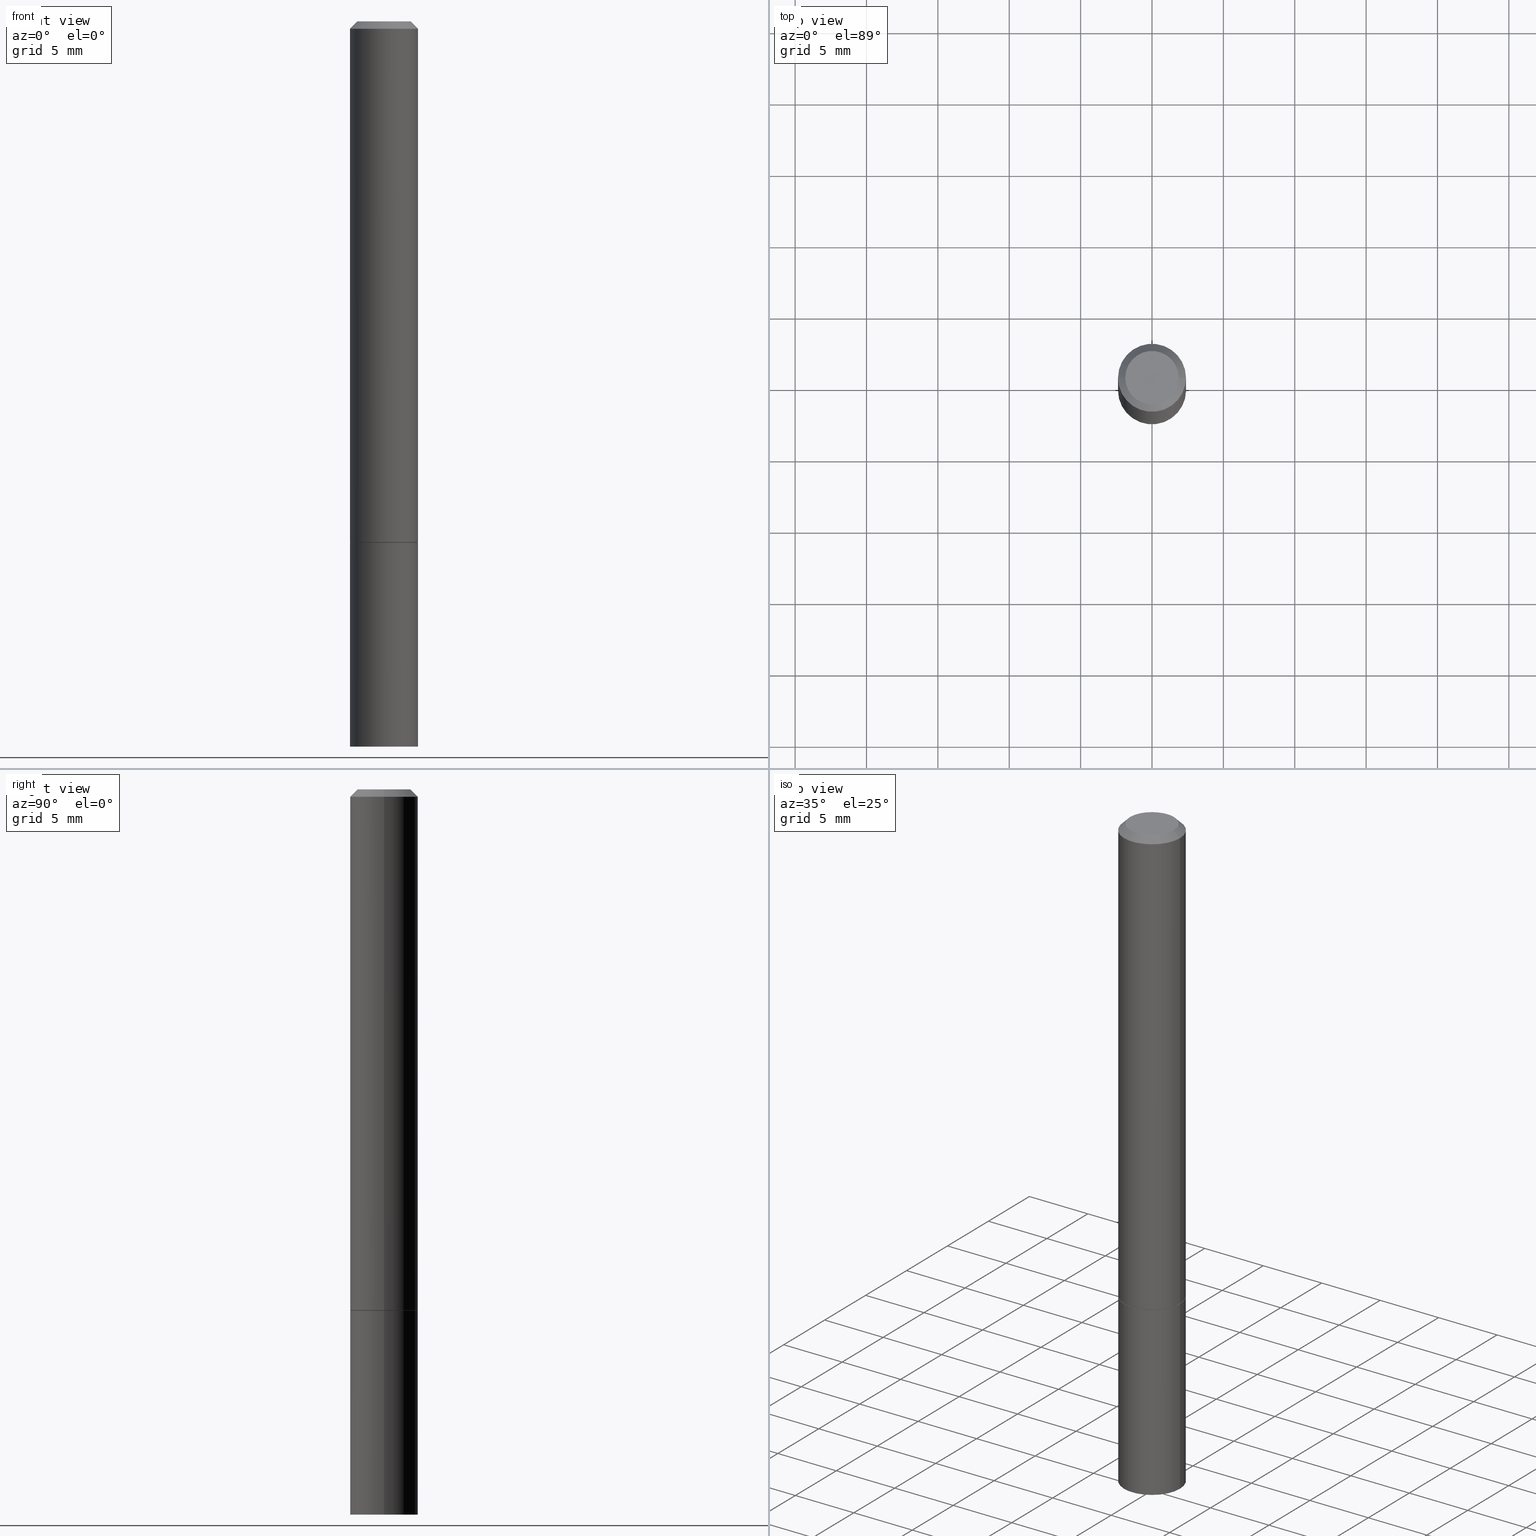
[diagram: canonical four-view strip — front | top / right | iso, engineering-drawing reading convention]
A machine part, canonical four-view strip (front | top / right | iso — engineering-drawing reading convention). The complete STEP part file that produces these views, byte-faithful:
ISO-10303-21;
HEADER;
FILE_DESCRIPTION (( 'STEP AP203' ),
    '1' );
FILE_NAME ('34729.STEP',
    '2024-02-27T17:12:00',
    ( '' ),
    ( '' ),
    'SwSTEP 2.0',
    'SolidWorks 2023',
    '' );
FILE_SCHEMA (( 'CONFIG_CONTROL_DESIGN' ));
ENDSEC;

DATA;
#1 = CARTESIAN_POINT ( 'NONE',  ( 3.515361408891133858E-29, -5.019004424587021553E-15, -1.437500000000000000 ) ) ;
#2 = PERSON_AND_ORGANIZATION ( #366, #289 ) ;
#3 = DIRECTION ( 'NONE',  ( -2.445468806185136597E-29, 3.491481338843145583E-15, 1.000000000000000000 ) ) ;
#4 = EDGE_CURVE ( 'NONE', #116, #150, #356, .T. ) ;
#5 = AXIS2_PLACEMENT_3D ( 'NONE', #243, #353, #136 ) ;
#6 = CARTESIAN_POINT ( 'NONE',  ( 3.512915940084948255E-29, -5.015512943248178546E-15, -1.436499999999999888 ) ) ;
#7 = ORIENTED_EDGE ( 'NONE', *, *, #242, .F. ) ;
#8 = MANIFOLD_SOLID_BREP ( 'Body-Move/Copy2[2]', #152 ) ;
#9 = MANIFOLD_SOLID_BREP ( 'Body-Move/Copy2[1]', #119 ) ;
#10 = VECTOR ( 'NONE', #336, 39.37007874015748143 ) ;
#11 = LOCAL_TIME ( 12, 12, 0.000000000000000000, #17 ) ;
#12 = CC_DESIGN_PERSON_AND_ORGANIZATION_ASSIGNMENT ( #183, #128, ( #314 ) ) ;
#13 = PERSON_AND_ORGANIZATION ( #366, #289 ) ;
#14 = PRODUCT ( '34729', '34729', '', ( #131 ) ) ;
#15 = CARTESIAN_POINT ( 'NONE',  ( 4.890937612370282792E-31, -6.982962677686303935E-17, -0.02000000000000003858 ) ) ;
#16 = ORIENTED_EDGE ( 'NONE', *, *, #141, .F. ) ;
#17 = COORDINATED_UNIVERSAL_TIME_OFFSET ( 5, 0, .BEHIND. ) ;
#18 = APPLICATION_PROTOCOL_DEFINITION ( 'international standard', 'config_control_design', 1994, #129 ) ;
#19 = DIRECTION ( 'NONE',  ( 1.000000000000000000, -6.982962677686261189E-15, 0.000000000000000000 ) ) ;
#20 = CALENDAR_DATE ( 2024, 27, 2 ) ;
#21 = EDGE_LOOP ( 'NONE', ( #293, #42 ) ) ;
#22 = FACE_OUTER_BOUND ( 'NONE', #259, .T. ) ;
#23 = AXIS2_PLACEMENT_3D ( 'NONE', #62, #186, #291 ) ;
#24 = LINE ( 'NONE', #55, #221 ) ;
#25 = CARTESIAN_POINT ( 'NONE',  ( 4.890937612370282792E-31, -6.982962677686303935E-17, -0.02000000000000003858 ) ) ;
#26 = ADVANCED_FACE ( 'NONE', ( #307 ), #113, .F. ) ;
#27 = CARTESIAN_POINT ( 'NONE',  ( -0.09274999999999999911, -4.359976037169529426E-15, -1.437500000000000000 ) ) ;
#28 = CYLINDRICAL_SURFACE ( 'NONE', #309, 0.09374999999999991673 ) ;
#29 = DIRECTION ( 'NONE',  ( 1.000000000000000000, -6.982962677686261189E-15, 0.000000000000000000 ) ) ;
#30 = CARTESIAN_POINT ( 'NONE',  ( -0.07374999999999984346, 5.499083108677921624E-16, 4.268512490096688071E-18 ) ) ;
#31 = CARTESIAN_POINT ( 'NONE',  ( -0.09374999999999983347, 5.848231242562233185E-16, -0.02000000000000003858 ) ) ;
#32 = VECTOR ( 'NONE', #285, 39.37007874015748143 ) ;
#33 =( NAMED_UNIT ( * ) SI_UNIT ( $, .STERADIAN. ) SOLID_ANGLE_UNIT ( ) );
#34 = CARTESIAN_POINT ( 'NONE',  ( 0.07374999999999984346, -6.094815207017961198E-16, 4.268512490104342487E-18 ) ) ;
#35 = AXIS2_PLACEMENT_3D ( 'NONE', #145, #328, #305 ) ;
#36 = EDGE_CURVE ( 'NONE', #150, #96, #110, .T. ) ;
#37 = EDGE_CURVE ( 'NONE', #65, #322, #170, .T. ) ;
#38 = EDGE_LOOP ( 'NONE', ( #73, #114 ) ) ;
#39 = CC_DESIGN_PERSON_AND_ORGANIZATION_ASSIGNMENT ( #236, #321, ( #85 ) ) ;
#40 = PERSON_AND_ORGANIZATION ( #366, #289 ) ;
#41 = AXIS2_PLACEMENT_3D ( 'NONE', #230, #91, #202 ) ;
#42 = ORIENTED_EDGE ( 'NONE', *, *, #151, .T. ) ;
#43 = ORIENTED_EDGE ( 'NONE', *, *, #36, .T. ) ;
#44 = DIRECTION ( 'NONE',  ( 1.000000000000000000, -6.982962677686266711E-15, 4.875869617646595616E-29 ) ) ;
#45 = CONICAL_SURFACE ( 'NONE', #251, 0.09274999999999999911, 0.7853981633974141952 ) ;
#46 = APPROVAL_PERSON_ORGANIZATION ( #2, #222, #217 ) ;
#47 = CARTESIAN_POINT ( 'NONE',  ( 5.149934974793610063E-16, 0.07374999999999984346, -2.553624924946312759E-16 ) ) ;
#48 = DIRECTION ( 'NONE',  ( -1.000000000000000000, 6.982962677686265922E-15, -4.876176775795935793E-29 ) ) ;
#49 = DIRECTION ( 'NONE',  ( -2.445468806185136597E-29, 3.491481338843145583E-15, 1.000000000000000000 ) ) ;
#50 = PLANE ( 'NONE',  #57 ) ;
#51 = AXIS2_PLACEMENT_3D ( 'NONE', #255, #92, #365 ) ;
#52 = DIRECTION ( 'NONE',  ( 2.438088387897960049E-29, -3.491481338843145188E-15, -1.000000000000000000 ) ) ;
#53 = DIRECTION ( 'NONE',  ( -2.445468806185136597E-29, 3.491481338843145583E-15, 1.000000000000000000 ) ) ;
#54 = EDGE_LOOP ( 'NONE', ( #335, #213 ) ) ;
#55 = CARTESIAN_POINT ( 'NONE',  ( -0.09374999999999991673, 6.661338147750933326E-16, -4.611501647113969791E-30 ) ) ;
#56 = CARTESIAN_POINT ( 'NONE',  ( 3.512915940084948255E-29, -5.015512943248178546E-15, -1.436499999999999888 ) ) ;
#57 = AXIS2_PLACEMENT_3D ( 'NONE', #47, #359, #245 ) ;
#58 = APPROVAL_PERSON_ORGANIZATION ( #97, #118, #76 ) ;
#59 = DATE_AND_TIME ( #278, #264 ) ;
#60 = DIRECTION ( 'NONE',  ( 1.000000000000000000, -6.982962677686266711E-15, 4.875869617646595616E-29 ) ) ;
#61 = CIRCLE ( 'NONE', #90, 0.09374999999999983347 ) ;
#62 = CARTESIAN_POINT ( 'NONE',  ( 0.000000000000000000, 0.000000000000000000, 0.000000000000000000 ) ) ;
#63 = ORIENTED_EDGE ( 'NONE', *, *, #37, .T. ) ;
#64 = APPROVAL_DATE_TIME ( #302, #347 ) ;
#65 = VERTEX_POINT ( 'NONE', #194 ) ;
#66 = FACE_OUTER_BOUND ( 'NONE', #360, .T. ) ;
#67 = ORIENTED_EDGE ( 'NONE', *, *, #279, .T. ) ;
#68 = SECURITY_CLASSIFICATION_LEVEL ( 'unclassified' ) ;
#69 = EDGE_LOOP ( 'NONE', ( #102, #215, #357, #304 ) ) ;
#70 = AXIS2_PLACEMENT_3D ( 'NONE', #15, #235, #340 ) ;
#71 = ADVANCED_FACE ( 'NONE', ( #165 ), #218, .T. ) ;
#72 = CARTESIAN_POINT ( 'NONE',  ( 3.515361408891133858E-29, -5.019004424587021553E-15, -1.437500000000000000 ) ) ;
#73 = ORIENTED_EDGE ( 'NONE', *, *, #4, .F. ) ;
#74 = CALENDAR_DATE ( 2024, 27, 2 ) ;
#75 = ORIENTED_EDGE ( 'NONE', *, *, #78, .F. ) ;
#76 = APPROVAL_ROLE ( '' ) ;
#77 = ORIENTED_EDGE ( 'NONE', *, *, #122, .T. ) ;
#78 = EDGE_CURVE ( 'NONE', #322, #346, #288, .T. ) ;
#79 = AXIS2_PLACEMENT_3D ( 'NONE', #224, #280, #82 ) ;
#80 = DIRECTION ( 'NONE',  ( -0.7071067811865232589, 7.493145998870265808E-15, 0.7071067811865715536 ) ) ;
#81 = EDGE_CURVE ( 'NONE', #260, #65, #111, .T. ) ;
#82 = DIRECTION ( 'NONE',  ( 1.000000000000000000, -6.982962677686265922E-15, 4.876176775795935793E-29 ) ) ;
#83 = CARTESIAN_POINT ( 'NONE',  ( 0.09374999999999991673, -6.546527510330869125E-16, 4.571415727308685602E-30 ) ) ;
#84 = DIRECTION ( 'NONE',  ( -2.445468806185136597E-29, 3.491481338843145583E-15, 1.000000000000000000 ) ) ;
#85 = PRODUCT_DEFINITION ( 'UNKNOWN', '', #314, #310 ) ;
#86 = AXIS2_PLACEMENT_3D ( 'NONE', #167, #52, #48 ) ;
#87 = DIRECTION ( 'NONE',  ( -2.445468806185136877E-29, 3.491481338843145188E-15, 1.000000000000000000 ) ) ;
#88 = DIRECTION ( 'NONE',  ( 1.000000000000000000, -6.982962677686261977E-15, 0.000000000000000000 ) ) ;
#89 = ADVANCED_FACE ( 'NONE', ( #22 ), #197, .T. ) ;
#90 = AXIS2_PLACEMENT_3D ( 'NONE', #172, #53, #257 ) ;
#91 = DIRECTION ( 'NONE',  ( -2.445468806185136597E-29, 3.491481338843145583E-15, 1.000000000000000000 ) ) ;
#92 = DIRECTION ( 'NONE',  ( -2.445468806185136597E-29, 3.491481338843145583E-15, 1.000000000000000000 ) ) ;
#93 = EDGE_CURVE ( 'NONE', #95, #270, #276, .T. ) ;
#94 = APPROVAL_PERSON_ORGANIZATION ( #13, #347, #348 ) ;
#95 = VERTEX_POINT ( 'NONE', #140 ) ;
#96 = VERTEX_POINT ( 'NONE', #247 ) ;
#97 = PERSON_AND_ORGANIZATION ( #366, #289 ) ;
#98 = FACE_OUTER_BOUND ( 'NONE', #38, .T. ) ;
#99 = APPROVAL_DATE_TIME ( #190, #118 ) ;
#100 = AXIS2_PLACEMENT_3D ( 'NONE', #121, #3, #60 ) ;
#101 = CYLINDRICAL_SURFACE ( 'NONE', #23, 0.09374999999999991673 ) ;
#102 = ORIENTED_EDGE ( 'NONE', *, *, #185, .T. ) ;
#103 = ADVANCED_FACE ( 'NONE', ( #163 ), #50, .F. ) ;
#104 = EDGE_CURVE ( 'NONE', #150, #116, #273, .T. ) ;
#105 = CALENDAR_DATE ( 2024, 27, 2 ) ;
#106 = ORIENTED_EDGE ( 'NONE', *, *, #157, .T. ) ;
#107 = DIRECTION ( 'NONE',  ( 1.000000000000000000, -6.982962677686261977E-15, 0.000000000000000000 ) ) ;
#108 = ADVANCED_FACE ( 'NONE', ( #250 ), #171, .T. ) ;
#109 = APPROVAL_STATUS ( 'not_yet_approved' ) ;
#110 = LINE ( 'NONE', #27, #292 ) ;
#111 = CIRCLE ( 'NONE', #132, 0.09375000000000001388 ) ;
#112 = LINE ( 'NONE', #31, #10 ) ;
#113 = PLANE ( 'NONE',  #86 ) ;
#114 = ORIENTED_EDGE ( 'NONE', *, *, #104, .F. ) ;
#115 = CARTESIAN_POINT ( 'NONE',  ( -0.09375000000000001388, -5.334849736361562435E-15, -1.437500000000000000 ) ) ;
#116 = VERTEX_POINT ( 'NONE', #216 ) ;
#117 = ORIENTED_EDGE ( 'NONE', *, *, #81, .T. ) ;
#118 = APPROVAL ( #272, 'UNSPECIFIED' ) ;
#119 = CLOSED_SHELL ( 'NONE', ( #311, #89, #26, #71 ) ) ;
#120 = LENGTH_MEASURE_WITH_UNIT ( LENGTH_MEASURE( 0.02539999999999999897 ), #169 );
#121 = CARTESIAN_POINT ( 'NONE',  ( -1.043851414335219820E-46, 1.490343170380447200E-32, 4.268512490100411279E-18 ) ) ;
#122 = EDGE_CURVE ( 'NONE', #260, #346, #223, .T. ) ;
#123 = DIRECTION ( 'NONE',  ( -2.445468806185136597E-29, 3.491481338843145583E-15, 1.000000000000000000 ) ) ;
#124 = DIRECTION ( 'NONE',  ( 1.000000000000000000, -6.982962677686261189E-15, 0.000000000000000000 ) ) ;
#125 = EDGE_CURVE ( 'NONE', #320, #130, #112, .T. ) ;
#126 = ORIENTED_EDGE ( 'NONE', *, *, #125, .F. ) ;
#127 = CIRCLE ( 'NONE', #196, 0.09375000000000001388 ) ;
#128 = PERSON_AND_ORGANIZATION_ROLE ( 'creator' ) ;
#129 = APPLICATION_CONTEXT ( 'configuration controlled 3d designs of mechanical parts and assemblies' ) ;
#130 = VERTEX_POINT ( 'NONE', #284 ) ;
#131 = MECHANICAL_CONTEXT ( 'NONE', #179, 'mechanical' ) ;
#132 = AXIS2_PLACEMENT_3D ( 'NONE', #332, #329, #19 ) ;
#133 = SECURITY_CLASSIFICATION ( '', '', #68 ) ;
#134 = CALENDAR_DATE ( 2024, 27, 2 ) ;
#135 = COORDINATED_UNIVERSAL_TIME_OFFSET ( 5, 0, .BEHIND. ) ;
#136 = DIRECTION ( 'NONE',  ( -1.000000000000000000, 6.982962677686265922E-15, -4.876176775795935793E-29 ) ) ;
#137 = CYLINDRICAL_SURFACE ( 'NONE', #35, 0.09375000000000001388 ) ;
#138 = DIRECTION ( 'NONE',  ( 1.000000000000000000, -6.982962677686261977E-15, 0.000000000000000000 ) ) ;
#139 = LOCAL_TIME ( 12, 12, 0.000000000000000000, #326 ) ;
#140 = CARTESIAN_POINT ( 'NONE',  ( 0.09375000000000001388, -5.670165694281265261E-15, -1.436499999999999888 ) ) ;
#141 = EDGE_CURVE ( 'NONE', #271, #270, #203, .T. ) ;
#142 = DIRECTION ( 'NONE',  ( 2.445468806185136597E-29, -3.491481338843145583E-15, -1.000000000000000000 ) ) ;
#143 = CC_DESIGN_SECURITY_CLASSIFICATION ( #133, ( #314 ) ) ;
#144 = CARTESIAN_POINT ( 'NONE',  ( 3.515361408891133858E-29, -5.019004424587021553E-15, -1.437500000000000000 ) ) ;
#145 = CARTESIAN_POINT ( 'NONE',  ( 0.000000000000000000, 0.000000000000000000, 0.000000000000000000 ) ) ;
#146 = FACE_OUTER_BOUND ( 'NONE', #330, .T. ) ;
#147 = DIRECTION ( 'NONE',  ( 1.000000000000000000, -6.982962677686261189E-15, 0.000000000000000000 ) ) ;
#148 = LOCAL_TIME ( 12, 12, 0.000000000000000000, #241 ) ;
#149 = DIMENSIONAL_EXPONENTS ( 1.000000000000000000, 0.000000000000000000, 0.000000000000000000, 0.000000000000000000, 0.000000000000000000, 0.000000000000000000, 0.000000000000000000 ) ;
#150 = VERTEX_POINT ( 'NONE', #177 ) ;
#151 = EDGE_CURVE ( 'NONE', #346, #322, #211, .T. ) ;
#152 = CLOSED_SHELL ( 'NONE', ( #275, #343, #204, #108, #201, #237, #231, #103 ) ) ;
#153 = DIRECTION ( 'NONE',  ( 0.000000000000000000, 0.000000000000000000, 1.000000000000000000 ) ) ;
#154 = ORIENTED_EDGE ( 'NONE', *, *, #37, .F. ) ;
#155 = FACE_OUTER_BOUND ( 'NONE', #269, .T. ) ;
#156 = ORIENTED_EDGE ( 'NONE', *, *, #323, .T. ) ;
#157 = EDGE_CURVE ( 'NONE', #130, #270, #61, .T. ) ;
#158 = AXIS2_PLACEMENT_3D ( 'NONE', #72, #189, #297 ) ;
#159 =( GEOMETRIC_REPRESENTATION_CONTEXT ( 3 ) GLOBAL_UNCERTAINTY_ASSIGNED_CONTEXT ( ( #266 ) ) GLOBAL_UNIT_ASSIGNED_CONTEXT ( ( #362, #176, #33 ) ) REPRESENTATION_CONTEXT ( 'NONE', 'WORKASPACE' ) );
#160 = DIRECTION ( 'NONE',  ( -2.445468806185136877E-29, 3.491481338843145188E-15, 1.000000000000000000 ) ) ;
#161 = DIRECTION ( 'NONE',  ( 1.000000000000000000, -6.982962677686261189E-15, 0.000000000000000000 ) ) ;
#162 = AXIS2_PLACEMENT_3D ( 'NONE', #198, #282, #29 ) ;
#163 = FACE_OUTER_BOUND ( 'NONE', #54, .T. ) ;
#164 = COORDINATED_UNIVERSAL_TIME_OFFSET ( 5, 0, .BEHIND. ) ;
#165 = FACE_OUTER_BOUND ( 'NONE', #286, .T. ) ;
#166 = EDGE_CURVE ( 'NONE', #271, #320, #261, .T. ) ;
#167 = CARTESIAN_POINT ( 'NONE',  ( 6.546527510331227070E-16, 0.09374999999999499012, -1.437500000000000222 ) ) ;
#168 = EDGE_CURVE ( 'NONE', #96, #95, #188, .T. ) ;
#169 =( LENGTH_UNIT ( ) NAMED_UNIT ( * ) SI_UNIT ( $, .METRE. ) );
#170 = LINE ( 'NONE', #220, #240 ) ;
#171 = CONICAL_SURFACE ( 'NONE', #319, 0.09374999999999983347, 0.7853981633974471688 ) ;
#172 = CARTESIAN_POINT ( 'NONE',  ( 4.890937612370282792E-31, -6.982962677686303935E-17, -0.02000000000000003858 ) ) ;
#173 = DATE_TIME_ROLE ( 'classification_date' ) ;
#174 = DIRECTION ( 'NONE',  ( -2.445468806185136597E-29, 3.491481338843145583E-15, 1.000000000000000000 ) ) ;
#175 = CC_DESIGN_PERSON_AND_ORGANIZATION_ASSIGNMENT ( #40, #342, ( #14 ) ) ;
#176 =( NAMED_UNIT ( * ) PLANE_ANGLE_UNIT ( ) SI_UNIT ( $, .RADIAN. ) );
#177 = CARTESIAN_POINT ( 'NONE',  ( -0.09274999999999999911, -4.354677582821307024E-15, -1.437500000000000000 ) ) ;
#178 = AXIS2_PLACEMENT_3D ( 'NONE', #252, #49, #161 ) ;
#179 = APPLICATION_CONTEXT ( 'configuration controlled 3d designs of mechanical parts and assemblies' ) ;
#180 = EDGE_LOOP ( 'NONE', ( #156, #77, #75, #154 ) ) ;
#181 = EDGE_CURVE ( 'NONE', #270, #130, #283, .T. ) ;
#182 = DIRECTION ( 'NONE',  ( 0.7071067811865232589, -2.468850131082003836E-15, 0.7071067811865715536 ) ) ;
#183 = PERSON_AND_ORGANIZATION ( #366, #289 ) ;
#184 = ORIENTED_EDGE ( 'NONE', *, *, #141, .T. ) ;
#185 = EDGE_CURVE ( 'NONE', #95, #96, #127, .T. ) ;
#186 = DIRECTION ( 'NONE',  ( -2.445468806185136597E-29, 3.491481338843145583E-15, 1.000000000000000000 ) ) ;
#187 = PERSON_AND_ORGANIZATION ( #366, #289 ) ;
#188 = CIRCLE ( 'NONE', #312, 0.09375000000000001388 ) ;
#189 = DIRECTION ( 'NONE',  ( -2.438088387897960049E-29, 3.491481338843145188E-15, 1.000000000000000000 ) ) ;
#190 = DATE_AND_TIME ( #20, #11 ) ;
#191 = ORIENTED_EDGE ( 'NONE', *, *, #185, .F. ) ;
#192 = EDGE_LOOP ( 'NONE', ( #317, #184, #267, #126 ) ) ;
#193 = AXIS2_PLACEMENT_3D ( 'NONE', #214, #153, #268 ) ;
#194 = CARTESIAN_POINT ( 'NONE',  ( 0.09375000000000001388, -7.637615428719378669E-15, -2.000000000000000000 ) ) ;
#195 = CARTESIAN_POINT ( 'NONE',  ( -0.09375000000000001388, -5.334849736361562435E-15, -2.000000000000000000 ) ) ;
#196 = AXIS2_PLACEMENT_3D ( 'NONE', #6, #174, #147 ) ;
#197 = PLANE ( 'NONE',  #5 ) ;
#198 = CARTESIAN_POINT ( 'NONE',  ( 3.515361408891133858E-29, -5.019004424587021553E-15, -1.437500000000000000 ) ) ;
#199 = FACE_OUTER_BOUND ( 'NONE', #69, .T. ) ;
#200 = AXIS2_PLACEMENT_3D ( 'NONE', #355, #363, #107 ) ;
#201 = ADVANCED_FACE ( 'NONE', ( #66 ), #101, .T. ) ;
#202 = DIRECTION ( 'NONE',  ( 1.000000000000000000, -6.982962677686267499E-15, 0.000000000000000000 ) ) ;
#203 = LINE ( 'NONE', #338, #32 ) ;
#204 = ADVANCED_FACE ( 'NONE', ( #265 ), #331, .T. ) ;
#205 = LOCAL_TIME ( 12, 12, 0.000000000000000000, #135 ) ;
#206 = ORIENTED_EDGE ( 'NONE', *, *, #93, .T. ) ;
#207 = DATE_AND_TIME ( #74, #205 ) ;
#208 = ORIENTED_EDGE ( 'NONE', *, *, #81, .F. ) ;
#209 = APPLICATION_PROTOCOL_DEFINITION ( 'international standard', 'config_control_design', 1994, #179 ) ;
#210 = PLANE ( 'NONE',  #158 ) ;
#211 = CIRCLE ( 'NONE', #51, 0.09375000000000001388 ) ;
#212 = PRODUCT_RELATED_PRODUCT_CATEGORY ( 'detail', '', ( #14 ) ) ;
#213 = ORIENTED_EDGE ( 'NONE', *, *, #166, .T. ) ;
#214 = CARTESIAN_POINT ( 'NONE',  ( 0.000000000000000000, 0.000000000000000000, 0.000000000000000000 ) ) ;
#215 = ORIENTED_EDGE ( 'NONE', *, *, #306, .T. ) ;
#216 = CARTESIAN_POINT ( 'NONE',  ( 0.09274999999999999911, -5.666674212942423043E-15, -1.437500000000000000 ) ) ;
#217 = APPROVAL_ROLE ( '' ) ;
#218 = CYLINDRICAL_SURFACE ( 'NONE', #79, 0.09375000000000001388 ) ;
#219 = DIRECTION ( 'NONE',  ( -2.445468806185136877E-29, 3.491481338843145188E-15, 1.000000000000000000 ) ) ;
#220 = CARTESIAN_POINT ( 'NONE',  ( 0.09375000000000001388, -6.546527510330875041E-16, 4.571415727308690506E-30 ) ) ;
#221 = VECTOR ( 'NONE', #226, 39.37007874015748143 ) ;
#222 = APPROVAL ( #109, 'UNSPECIFIED' ) ;
#223 = LINE ( 'NONE', #324, #308 ) ;
#224 = CARTESIAN_POINT ( 'NONE',  ( 0.000000000000000000, 0.000000000000000000, 0.000000000000000000 ) ) ;
#225 = ADVANCED_BREP_SHAPE_REPRESENTATION ( '34729', ( #9, #8, #193 ), #159 ) ;
#226 = DIRECTION ( 'NONE',  ( -2.445468806185136877E-29, 3.491481338843145188E-15, 1.000000000000000000 ) ) ;
#227 = CARTESIAN_POINT ( 'NONE',  ( 0.09374999999999983347, -7.130013140679430017E-16, -0.02000000000000003858 ) ) ;
#228 = DIRECTION ( 'NONE',  ( -2.445468806185136597E-29, 3.491481338843145583E-15, 1.000000000000000000 ) ) ;
#229 = CIRCLE ( 'NONE', #277, 0.07374999999999984346 ) ;
#230 = CARTESIAN_POINT ( 'NONE',  ( 4.890937612370282792E-31, -6.982962677686303935E-17, -0.02000000000000003858 ) ) ;
#231 = ADVANCED_FACE ( 'NONE', ( #98 ), #210, .F. ) ;
#232 = ORIENTED_EDGE ( 'NONE', *, *, #4, .T. ) ;
#233 = PERSON_AND_ORGANIZATION_ROLE ( 'design_supplier' ) ;
#234 = ORIENTED_EDGE ( 'NONE', *, *, #36, .F. ) ;
#235 = DIRECTION ( 'NONE',  ( 2.445468806185136597E-29, -3.491481338843145583E-15, -1.000000000000000000 ) ) ;
#236 = PERSON_AND_ORGANIZATION ( #366, #289 ) ;
#237 = ADVANCED_FACE ( 'NONE', ( #155 ), #364, .T. ) ;
#238 = SHAPE_DEFINITION_REPRESENTATION ( #258, #225 ) ;
#239 = ORIENTED_EDGE ( 'NONE', *, *, #279, .F. ) ;
#240 = VECTOR ( 'NONE', #160, 39.37007874015748143 ) ;
#241 = COORDINATED_UNIVERSAL_TIME_OFFSET ( 5, 0, .BEHIND. ) ;
#242 = EDGE_CURVE ( 'NONE', #320, #271, #229, .T. ) ;
#243 = CARTESIAN_POINT ( 'NONE',  ( 6.546527510331364135E-16, 0.09374999999999301947, -2.000000000000000444 ) ) ;
#244 = CARTESIAN_POINT ( 'NONE',  ( 3.515361408891133858E-29, -5.019004424587021553E-15, -1.437500000000000000 ) ) ;
#245 = DIRECTION ( 'NONE',  ( -1.000000000000000000, 6.982962677686265922E-15, -4.876176775795935793E-29 ) ) ;
#246 = CC_DESIGN_DATE_AND_TIME_ASSIGNMENT ( #59, #173, ( #133 ) ) ;
#247 = CARTESIAN_POINT ( 'NONE',  ( -0.09375000000000001388, -1.876537470237424631E-15, -1.436499999999999888 ) ) ;
#248 = DIRECTION ( 'NONE',  ( -1.000000000000000000, 6.982962677686267499E-15, 0.000000000000000000 ) ) ;
#249 = DIRECTION ( 'NONE',  ( -2.445468806185136597E-29, 3.491481338843145583E-15, 1.000000000000000000 ) ) ;
#250 = FACE_OUTER_BOUND ( 'NONE', #263, .T. ) ;
#251 = AXIS2_PLACEMENT_3D ( 'NONE', #1, #123, #296 ) ;
#252 = CARTESIAN_POINT ( 'NONE',  ( 4.890937612370273194E-29, -6.982962677686291165E-15, -2.000000000000000000 ) ) ;
#253 = AXIS2_PLACEMENT_3D ( 'NONE', #244, #354, #138 ) ;
#254 = CC_DESIGN_APPROVAL ( #222, ( #133 ) ) ;
#255 = CARTESIAN_POINT ( 'NONE',  ( 3.515361408891133858E-29, -5.019004424587021553E-15, -1.437500000000000000 ) ) ;
#256 = CARTESIAN_POINT ( 'NONE',  ( 0.000000000000000000, 0.000000000000000000, 0.000000000000000000 ) ) ;
#257 = DIRECTION ( 'NONE',  ( 1.000000000000000000, -6.982962677686267499E-15, 0.000000000000000000 ) ) ;
#258 = PRODUCT_DEFINITION_SHAPE ( 'NONE', 'NONE',  #85 ) ;
#259 = EDGE_LOOP ( 'NONE', ( #339, #208 ) ) ;
#260 = VERTEX_POINT ( 'NONE', #195 ) ;
#261 = CIRCLE ( 'NONE', #100, 0.07374999999999984346 ) ;
#262 = ORIENTED_EDGE ( 'NONE', *, *, #306, .F. ) ;
#263 = EDGE_LOOP ( 'NONE', ( #16, #7, #345, #106 ) ) ;
#264 = LOCAL_TIME ( 12, 12, 0.000000000000000000, #164 ) ;
#265 = FACE_OUTER_BOUND ( 'NONE', #192, .T. ) ;
#266 = UNCERTAINTY_MEASURE_WITH_UNIT (LENGTH_MEASURE( 1.000000000000000082E-05 ), #362, 'distance_accuracy_value', 'NONE');
#267 = ORIENTED_EDGE ( 'NONE', *, *, #181, .T. ) ;
#268 = DIRECTION ( 'NONE',  ( 1.000000000000000000, 0.000000000000000000, 0.000000000000000000 ) ) ;
#269 = EDGE_LOOP ( 'NONE', ( #234, #350, #67, #300 ) ) ;
#270 = VERTEX_POINT ( 'NONE', #227 ) ;
#271 = VERTEX_POINT ( 'NONE', #34 ) ;
#272 = APPROVAL_STATUS ( 'not_yet_approved' ) ;
#273 = CIRCLE ( 'NONE', #200, 0.09274999999999999911 ) ;
#274 = DATE_TIME_ROLE ( 'creation_date' ) ;
#275 = ADVANCED_FACE ( 'NONE', ( #146 ), #45, .T. ) ;
#276 = LINE ( 'NONE', #83, #313 ) ;
#277 = AXIS2_PLACEMENT_3D ( 'NONE', #281, #351, #44 ) ;
#278 = CALENDAR_DATE ( 2024, 27, 2 ) ;
#279 = EDGE_CURVE ( 'NONE', #116, #95, #349, .T. ) ;
#280 = DIRECTION ( 'NONE',  ( -2.445468806185136597E-29, 3.491481338843145583E-15, 1.000000000000000000 ) ) ;
#281 = CARTESIAN_POINT ( 'NONE',  ( -1.043851414335219820E-46, 1.490343170380447200E-32, 4.268512490100411279E-18 ) ) ;
#282 = DIRECTION ( 'NONE',  ( -2.445468806185136597E-29, 3.491481338843145583E-15, 1.000000000000000000 ) ) ;
#283 = CIRCLE ( 'NONE', #41, 0.09374999999999983347 ) ;
#284 = CARTESIAN_POINT ( 'NONE',  ( -0.09374999999999983347, 5.848231242562233185E-16, -0.02000000000000003858 ) ) ;
#285 = DIRECTION ( 'NONE',  ( 0.7071067811865466846, -7.319954787623252890E-15, -0.7071067811865483499 ) ) ;
#286 = EDGE_LOOP ( 'NONE', ( #341, #117, #63, #315 ) ) ;
#287 = CARTESIAN_POINT ( 'NONE',  ( 0.09274999999999999911, -5.666674212942423043E-15, -1.437500000000000000 ) ) ;
#288 = CIRCLE ( 'NONE', #162, 0.09375000000000001388 ) ;
#289 = ORGANIZATION ( 'UNSPECIFIED', 'UNSPECIFIED', '' ) ;
#290 = CC_DESIGN_PERSON_AND_ORGANIZATION_ASSIGNMENT ( #187, #295, ( #133 ) ) ;
#291 = DIRECTION ( 'NONE',  ( 1.000000000000000000, -6.982962677686266711E-15, 4.876176775795935793E-29 ) ) ;
#292 = VECTOR ( 'NONE', #80, 39.37007874015748854 ) ;
#293 = ORIENTED_EDGE ( 'NONE', *, *, #78, .T. ) ;
#294 = CC_DESIGN_APPROVAL ( #118, ( #85 ) ) ;
#295 = PERSON_AND_ORGANIZATION_ROLE ( 'classification_officer' ) ;
#296 = DIRECTION ( 'NONE',  ( 1.000000000000000000, -6.982962677686261977E-15, 0.000000000000000000 ) ) ;
#297 = DIRECTION ( 'NONE',  ( 1.000000000000000000, -6.982962677686265922E-15, 4.876176775795935793E-29 ) ) ;
#298 = DATE_AND_TIME ( #134, #139 ) ;
#299 = ORIENTED_EDGE ( 'NONE', *, *, #168, .T. ) ;
#300 = ORIENTED_EDGE ( 'NONE', *, *, #168, .F. ) ;
#301 = VECTOR ( 'NONE', #182, 39.37007874015748854 ) ;
#302 = DATE_AND_TIME ( #105, #148 ) ;
#303 = CC_DESIGN_APPROVAL ( #347, ( #314 ) ) ;
#304 = ORIENTED_EDGE ( 'NONE', *, *, #93, .F. ) ;
#305 = DIRECTION ( 'NONE',  ( 1.000000000000000000, -6.982962677686265922E-15, 4.876176775795935793E-29 ) ) ;
#306 = EDGE_CURVE ( 'NONE', #96, #130, #24, .T. ) ;
#307 = FACE_OUTER_BOUND ( 'NONE', #21, .T. ) ;
#308 = VECTOR ( 'NONE', #87, 39.37007874015748143 ) ;
#309 = AXIS2_PLACEMENT_3D ( 'NONE', #256, #249, #361 ) ;
#310 = DESIGN_CONTEXT ( 'detailed design', #129, 'design' ) ;
#311 = ADVANCED_FACE ( 'NONE', ( #334 ), #137, .T. ) ;
#312 = AXIS2_PLACEMENT_3D ( 'NONE', #56, #228, #124 ) ;
#313 = VECTOR ( 'NONE', #219, 39.37007874015748143 ) ;
#314 = PRODUCT_DEFINITION_FORMATION_WITH_SPECIFIED_SOURCE ( 'ANY', '', #14, .NOT_KNOWN. ) ;
#315 = ORIENTED_EDGE ( 'NONE', *, *, #151, .F. ) ;
#316 = APPROVAL_STATUS ( 'not_yet_approved' ) ;
#317 = ORIENTED_EDGE ( 'NONE', *, *, #166, .F. ) ;
#318 = PERSON_AND_ORGANIZATION ( #366, #289 ) ;
#319 = AXIS2_PLACEMENT_3D ( 'NONE', #25, #142, #248 ) ;
#320 = VERTEX_POINT ( 'NONE', #30 ) ;
#321 = PERSON_AND_ORGANIZATION_ROLE ( 'creator' ) ;
#322 = VERTEX_POINT ( 'NONE', #358 ) ;
#323 = EDGE_CURVE ( 'NONE', #65, #260, #344, .T. ) ;
#324 = CARTESIAN_POINT ( 'NONE',  ( -0.09375000000000001388, 6.661338147750940229E-16, -4.611501647113973995E-30 ) ) ;
#325 = AXIS2_PLACEMENT_3D ( 'NONE', #144, #84, #88 ) ;
#326 = COORDINATED_UNIVERSAL_TIME_OFFSET ( 5, 0, .BEHIND. ) ;
#327 = ORIENTED_EDGE ( 'NONE', *, *, #157, .F. ) ;
#328 = DIRECTION ( 'NONE',  ( -2.445468806185136597E-29, 3.491481338843145583E-15, 1.000000000000000000 ) ) ;
#329 = DIRECTION ( 'NONE',  ( -2.445468806185136597E-29, 3.491481338843145583E-15, 1.000000000000000000 ) ) ;
#330 = EDGE_LOOP ( 'NONE', ( #232, #43, #191, #239 ) ) ;
#331 = CONICAL_SURFACE ( 'NONE', #70, 0.09374999999999983347, 0.7853981633974471688 ) ;
#332 = CARTESIAN_POINT ( 'NONE',  ( 4.890937612370273194E-29, -6.982962677686291165E-15, -2.000000000000000000 ) ) ;
#333 = CC_DESIGN_DATE_AND_TIME_ASSIGNMENT ( #207, #274, ( #85 ) ) ;
#334 = FACE_OUTER_BOUND ( 'NONE', #180, .T. ) ;
#335 = ORIENTED_EDGE ( 'NONE', *, *, #242, .T. ) ;
#336 = DIRECTION ( 'NONE',  ( -0.7071067811865466846, 2.468850131082247989E-15, -0.7071067811865483499 ) ) ;
#337 = CC_DESIGN_PERSON_AND_ORGANIZATION_ASSIGNMENT ( #318, #233, ( #314 ) ) ;
#338 = CARTESIAN_POINT ( 'NONE',  ( 0.09374999999999983347, -7.130013140679430017E-16, -0.02000000000000003858 ) ) ;
#339 = ORIENTED_EDGE ( 'NONE', *, *, #323, .F. ) ;
#340 = DIRECTION ( 'NONE',  ( -1.000000000000000000, 6.982962677686267499E-15, 0.000000000000000000 ) ) ;
#341 = ORIENTED_EDGE ( 'NONE', *, *, #122, .F. ) ;
#342 = PERSON_AND_ORGANIZATION_ROLE ( 'design_owner' ) ;
#343 = ADVANCED_FACE ( 'NONE', ( #199 ), #28, .T. ) ;
#344 = CIRCLE ( 'NONE', #178, 0.09375000000000001388 ) ;
#345 = ORIENTED_EDGE ( 'NONE', *, *, #125, .T. ) ;
#346 = VERTEX_POINT ( 'NONE', #115 ) ;
#347 = APPROVAL ( #316, 'UNSPECIFIED' ) ;
#348 = APPROVAL_ROLE ( '' ) ;
#349 = LINE ( 'NONE', #287, #301 ) ;
#350 = ORIENTED_EDGE ( 'NONE', *, *, #104, .T. ) ;
#351 = DIRECTION ( 'NONE',  ( -2.445468806185136597E-29, 3.491481338843145583E-15, 1.000000000000000000 ) ) ;
#352 = APPROVAL_DATE_TIME ( #298, #222 ) ;
#353 = DIRECTION ( 'NONE',  ( 2.438088387897960049E-29, -3.491481338843145188E-15, -1.000000000000000000 ) ) ;
#354 = DIRECTION ( 'NONE',  ( -2.445468806185136597E-29, 3.491481338843145583E-15, 1.000000000000000000 ) ) ;
#355 = CARTESIAN_POINT ( 'NONE',  ( 3.515361408891133858E-29, -5.019004424587021553E-15, -1.437500000000000000 ) ) ;
#356 = CIRCLE ( 'NONE', #325, 0.09274999999999999911 ) ;
#357 = ORIENTED_EDGE ( 'NONE', *, *, #181, .F. ) ;
#358 = CARTESIAN_POINT ( 'NONE',  ( 0.09375000000000001388, -5.673657175620109057E-15, -1.437500000000000000 ) ) ;
#359 = DIRECTION ( 'NONE',  ( 2.438088387897960049E-29, -3.491481338843145188E-15, -1.000000000000000000 ) ) ;
#360 = EDGE_LOOP ( 'NONE', ( #262, #299, #206, #327 ) ) ;
#361 = DIRECTION ( 'NONE',  ( 1.000000000000000000, -6.982962677686266711E-15, 4.876176775795935793E-29 ) ) ;
#362 =( CONVERSION_BASED_UNIT ( 'INCH', #120 ) LENGTH_UNIT ( ) NAMED_UNIT ( #149 ) );
#363 = DIRECTION ( 'NONE',  ( -2.445468806185136597E-29, 3.491481338843145583E-15, 1.000000000000000000 ) ) ;
#364 = CONICAL_SURFACE ( 'NONE', #253, 0.09274999999999999911, 0.7853981633974141952 ) ;
#365 = DIRECTION ( 'NONE',  ( 1.000000000000000000, -6.982962677686261189E-15, 0.000000000000000000 ) ) ;
#366 = PERSON ( 'UNSPECIFIED', 'UNSPECIFIED', 'UNSPECIFIED', ('UNSPECIFIED'), ('UNSPECIFIED'), ('UNSPECIFIED') ) ;
ENDSEC;
END-ISO-10303-21;
